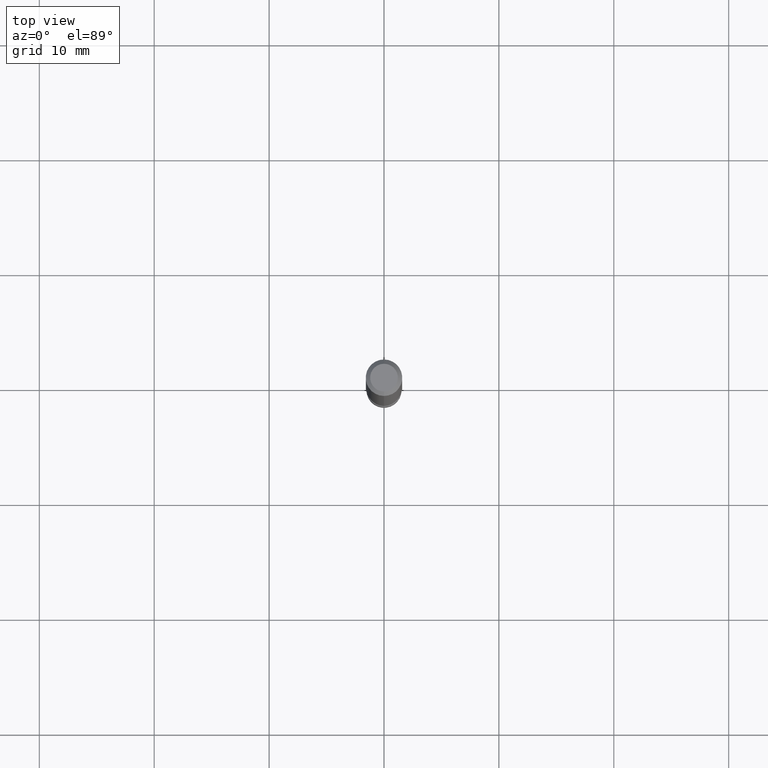
[diagram: clean part render]
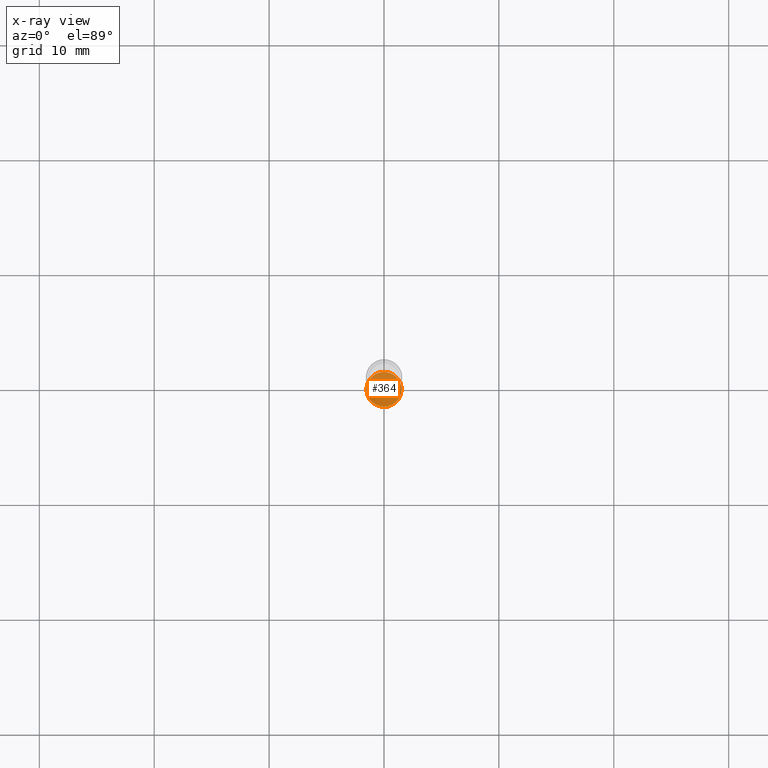
[diagram: x-ray — body ghosted, one internal face saturated and labeled with its STEP entity id]
A machine part, top view, then the same camera in x-ray: the body is ghosted and one INTERNAL B-rep face — a face not visible from any outside direction — is saturated and labeled: STEP entity #364.
In plain terms, the highlighted planar face has unit normal (-0, 0, 1).
Its self-contained STEP definition (entity closure, byte-faithful):
#28 = ORIENTED_EDGE ( 'NONE', *, *, #123, .F. ) ;
#74 = CIRCLE ( 'NONE', #226, 0.05999999999999999778 ) ;
#88 = PLANE ( 'NONE',  #481 ) ;
#95 = CARTESIAN_POINT ( 'NONE',  ( 4.263256414561168444E-16, 0.05999999999999190703, -2.320000000000000284 ) ) ;
#123 = EDGE_CURVE ( 'NONE', #266, #184, #74, .T. ) ;
#146 = CARTESIAN_POINT ( 'NONE',  ( 5.673267956629101509E-29, -8.100551291386784361E-15, -2.320000000000000284 ) ) ;
#179 = CARTESIAN_POINT ( 'NONE',  ( 4.189777606612326922E-16, 0.05999999999999190009, -2.320000000000000284 ) ) ;
#184 = VERTEX_POINT ( 'NONE', #95 ) ;
#225 = DIRECTION ( 'NONE',  ( -6.982962677686265922E-15, -1.000000000000000000, 4.553079989440439092E-15 ) ) ;
#226 = AXIS2_PLACEMENT_3D ( 'NONE', #146, #240, #417 ) ;
#240 = DIRECTION ( 'NONE',  ( -2.445374119236681714E-29, 3.491616935942579411E-15, 1.000000000000000000 ) ) ;
#266 = VERTEX_POINT ( 'NONE', #517 ) ;
#267 = DIRECTION ( 'NONE',  ( -2.445374119236681714E-29, 3.491616935942579411E-15, 1.000000000000000000 ) ) ;
#268 = EDGE_LOOP ( 'NONE', ( #28, #537 ) ) ;
#269 = DIRECTION ( 'NONE',  ( -6.982962677686265922E-15, -1.000000000000000000, 3.491616935942579411E-15 ) ) ;
#344 = FACE_OUTER_BOUND ( 'NONE', #268, .T. ) ;
#364 = ADVANCED_FACE ( 'NONE', ( #344 ), #88, .F. ) ;
#370 = EDGE_CURVE ( 'NONE', #184, #266, #522, .T. ) ;
#398 = DIRECTION ( 'NONE',  ( -2.445374119236681433E-29, 3.491616935942579411E-15, 1.000000000000000000 ) ) ;
#417 = DIRECTION ( 'NONE',  ( -6.982962677686265922E-15, -1.000000000000000000, 4.553079989440439092E-15 ) ) ;
#481 = AXIS2_PLACEMENT_3D ( 'NONE', #179, #398, #269 ) ;
#487 = AXIS2_PLACEMENT_3D ( 'NONE', #529, #267, #225 ) ;
#517 = CARTESIAN_POINT ( 'NONE',  ( -4.189777606611192934E-16, -0.06000000000000810935, -2.319999999999999840 ) ) ;
#522 = CIRCLE ( 'NONE', #487, 0.05999999999999999778 ) ;
#529 = CARTESIAN_POINT ( 'NONE',  ( 5.673267956629101509E-29, -8.100551291386784361E-15, -2.320000000000000284 ) ) ;
#537 = ORIENTED_EDGE ( 'NONE', *, *, #370, .F. ) ;